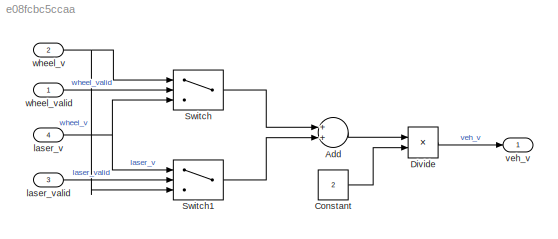
MODEL slx_e08fcbc5ccaa
KIND model
CONFIG AbsTol = auto
CONFIG EnableMultiTasking = off
CONFIG FixedStep = auto
CONFIG MaxStep = auto
CONFIG MinStep = auto
CONFIG RelTol = 1e-3
CONFIG SampleTimeConstraint = Unconstrained
CONFIG Solver = VariableStepAuto
CONFIG SolverName = VariableStepAuto
CONFIG StartTime = 0.0
CONFIG StopTime = 10.0
BLOCK [Sum] Add
  InputSameDT = off
  OutDataTypeStr = Inherit: Inherit via internal rule
  Ports = [2, 1]
  SaturateOnIntegerOverflow = off
BLOCK [Constant] Constant
  Value = 2
BLOCK [Product] Divide
  InputSameDT = off
  Inputs = */
  OutDataTypeStr = Inherit: Inherit via internal rule
  Ports = [2, 1]
  RndMeth = Floor
  SaturateOnIntegerOverflow = off
BLOCK [Switch] Switch
  Criteria = u2 > Threshold
  InputSameDT = off
  SaturateOnIntegerOverflow = off
BLOCK [Switch] Switch1
  Criteria = u2 > Threshold
  InputSameDT = off
  SaturateOnIntegerOverflow = off
BLOCK [Inport] laser_v
  IconDisplay = Port number
  Port = 4
BLOCK [Inport] laser_valid
  IconDisplay = Port number
  Port = 3
BLOCK [Outport] veh_v
  IconDisplay = Port number
BLOCK [Inport] wheel_v
  IconDisplay = Port number
  Port = 2
BLOCK [Inport] wheel_valid
  IconDisplay = Port number
LINE Add:1 -> Divide:1
LINE Constant:1 -> Divide:2
LINE Divide:1 -> veh_v:1
LINE Switch1:1 -> Add:2
LINE Switch:1 -> Add:1
NET laser_v:1 -> Switch1:1, Switch:3
LINE laser_valid:1 -> Switch1:2
NET wheel_v:1 -> Switch1:3, Switch:1
LINE wheel_valid:1 -> Switch:2
note: NET lines group one-source signal fan-out (src -> all destinations, sorted); 1:1 wires keep LINE
